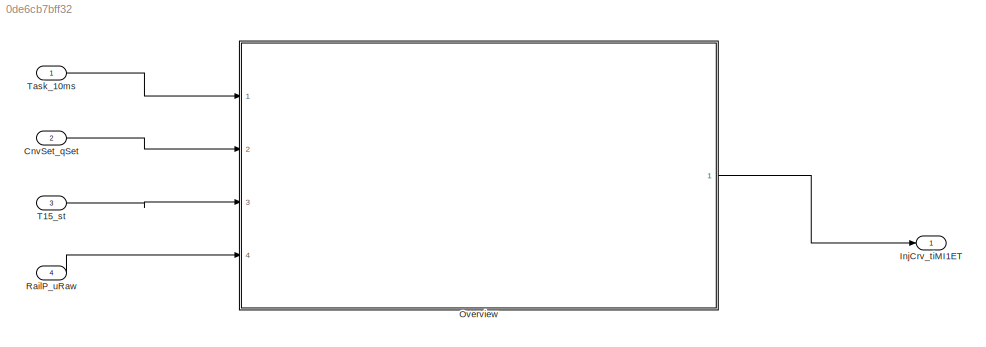
MODEL slx_0de6cb7bff32
KIND model
CONFIG AbsTol = auto
CONFIG EnableMultiTasking = off
CONFIG FixedStep = auto
CONFIG MaxStep = auto
CONFIG MinStep = auto
CONFIG RelTol = 1e-3
CONFIG SampleTimeConstraint = Unconstrained
CONFIG SolverName = VariableStepAuto
CONFIG StartTime = 0.0
CONFIG StopTime = 10.0
BLOCK [Inport] CnvSet_qSet
  Port = 2
BLOCK [Outport] InjCrv_tiMI1ET
  VectorParamsAs1DForOutWhenUnconnected = off
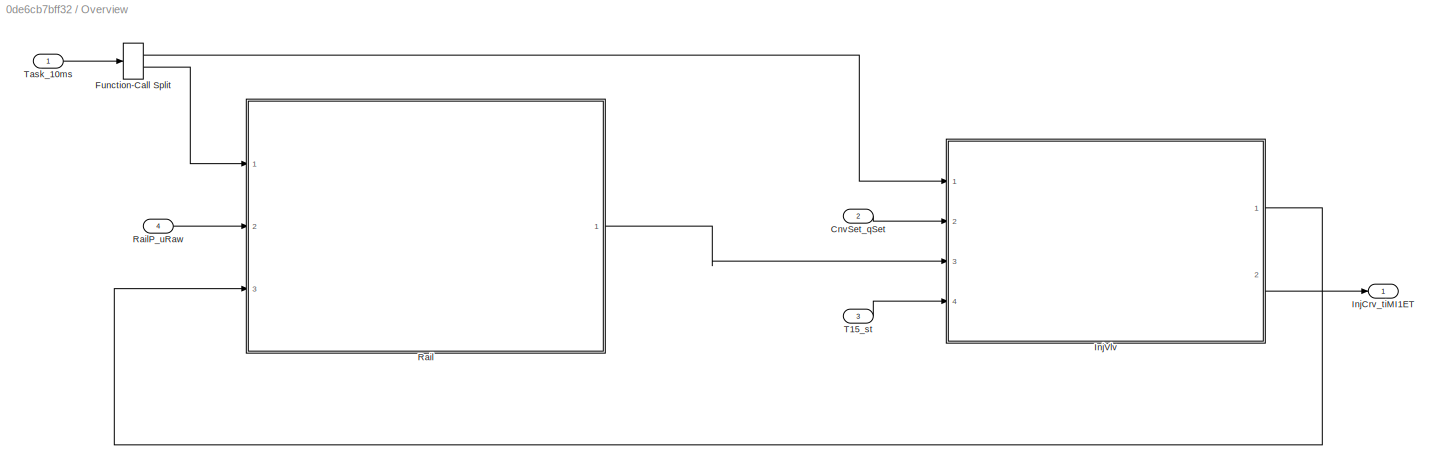
BLOCK [SubSystem] Overview
  Ports = [4, 1]
  RequestExecContextInheritance = off
BLOCK [Inport] Overview/CnvSet_qSet
  Port = 2
BLOCK [FunctionCallSplit] Overview/Function-Call Split
  IconShape = distinctive
  NumOutputPorts = 2
  OutputPortLayout = default
  Ports = [1, 2]
BLOCK [Outport] Overview/InjCrv_tiMI1ET
  VectorParamsAs1DForOutWhenUnconnected = off
BLOCK [ModelReference] Overview/InjVlv
  ModelNameDialog = InjVlv
  ModelReferenceVersion = 6.0
  Ports = [4, 2]
  ScheduleRates = on
BLOCK [ModelReference] Overview/Rail
  ModelNameDialog = Rail
  ModelReferenceVersion = 6.0
  Ports = [3, 1]
  ScheduleRates = on
BLOCK [Inport] Overview/RailP_uRaw
  Port = 4
BLOCK [Inport] Overview/T15_st
  Port = 3
BLOCK [Inport] Overview/Task_10ms
BLOCK [Inport] RailP_uRaw
  Port = 4
BLOCK [Inport] T15_st
  Port = 3
BLOCK [Inport] Task_10ms
  OutputFunctionCall = on
LINE CnvSet_qSet:1 -> Overview:2
LINE Overview/CnvSet_qSet:1 -> Overview/InjVlv:2
LINE Overview/Function-Call Split:1 -> Overview/InjVlv:1
LINE Overview/Function-Call Split:2 -> Overview/Rail:1
LINE Overview/InjVlv:1 -> Overview/Rail:3
LINE Overview/InjVlv:2 -> Overview/InjCrv_tiMI1ET:1
LINE Overview/Rail:1 -> Overview/InjVlv:3
LINE Overview/RailP_uRaw:1 -> Overview/Rail:2
LINE Overview/T15_st:1 -> Overview/InjVlv:4
LINE Overview/Task_10ms:1 -> Overview/Function-Call Split:1
LINE Overview:1 -> InjCrv_tiMI1ET:1
LINE RailP_uRaw:1 -> Overview:4
LINE T15_st:1 -> Overview:3
LINE Task_10ms:1 -> Overview:1
